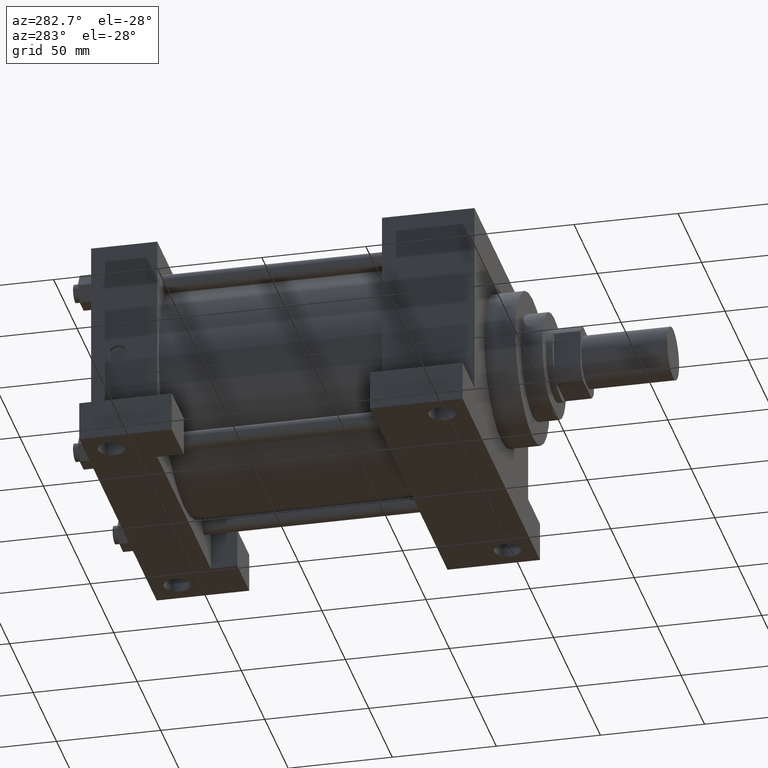
[diagram: clean part render]
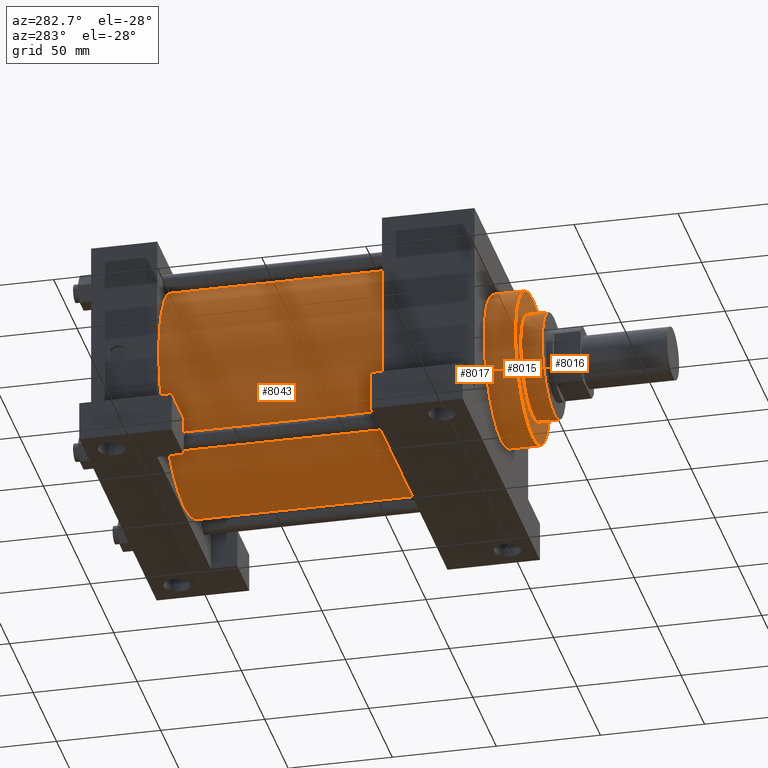
[diagram: same view with one multi-face feature highlighted, each face labeled with its STEP entity id]
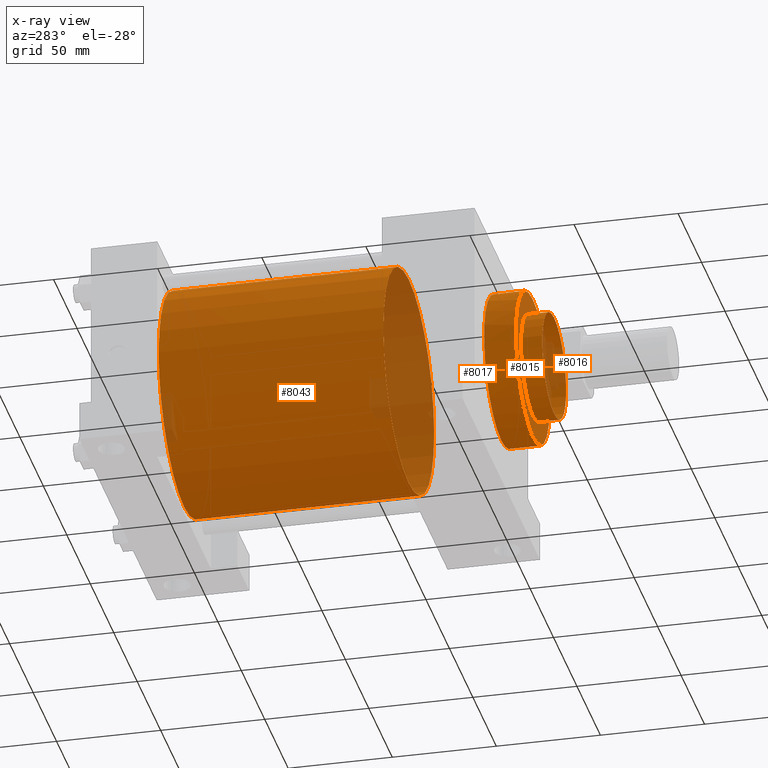
[diagram: x-ray of the same camera — body ghosted, the whole feature saturated]
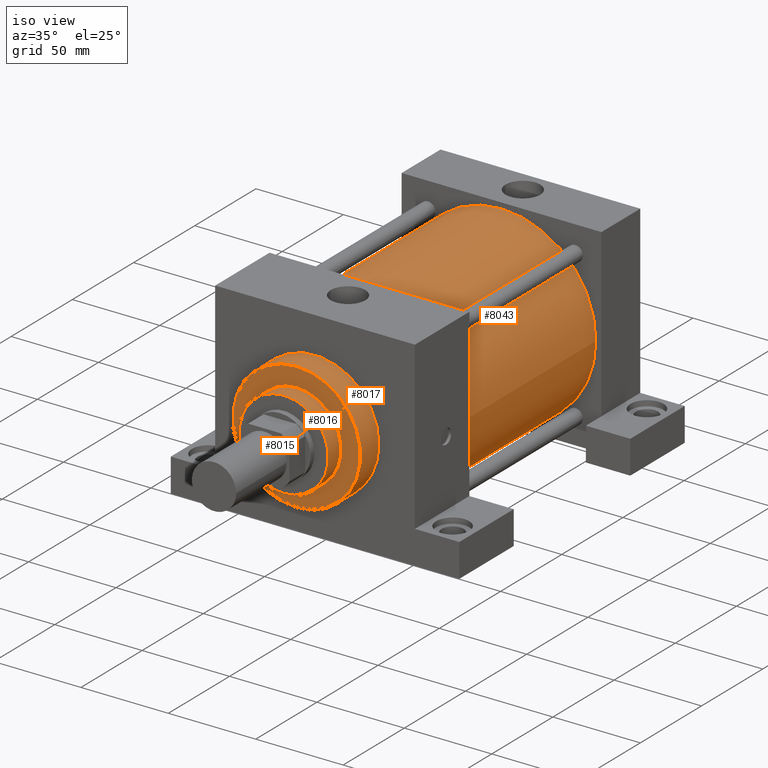
[diagram: same view with one multi-face feature highlighted, each face labeled with its STEP entity id]
A machine part, auxiliary view. The highlighted faces form ONE feature: a stepped (counterbored) hole: 3 coaxial cylindrical walls of radii 25.4 -> 36.5125 -> 53.975 mm joined by 1 annular planar shoulder face(s). The faces share edges in the B-rep.
The next image is the same camera in x-ray: the body ghosted and the whole hole feature saturated, so the bore chain is visible through the body.
A second angle (iso view) of the same feature is appended — it is thin or edge-on in the first view.
Their STEP definitions:
[1] entity #8043 (Cylinder):
#603=EDGE_CURVE('',#609,#609,#604,.T.);
#604=CIRCLE('',#605,5.397500000E+001);
#605=AXIS2_PLACEMENT_3D('',#606,#607,#608);
#606=CARTESIAN_POINT('',(0.000000000E+000,8.572500000E+001,0.000000000E+000));
#607=DIRECTION('',(0.0E+000,1.0E+000,0.0E+000));
#608=DIRECTION('',(1.0E+000,0.0E+000,0.0E+000));
#609=VERTEX_POINT('',#610);
#610=CARTESIAN_POINT('',(5.397500000E+001,8.572500000E+001,0.000000000E+000));
#1120=FACE_OUTER_BOUND('',#1122,.T.);
#1121=FACE_BOUND('',#1123,.T.);
#1122=EDGE_LOOP('',(#1124));
#1123=EDGE_LOOP('',(#1133));
#1124=ORIENTED_EDGE('',*,*,#1125,.F.);
#1125=EDGE_CURVE('',#1131,#1131,#1126,.T.);
#1126=CIRCLE('',#1127,5.397500000E+001);
#1127=AXIS2_PLACEMENT_3D('',#1128,#1129,#1130);
#1128=CARTESIAN_POINT('',(0.000000000E+000,1.936750000E+002,0.000000000E+000));
#1129=DIRECTION('',(0.0E+000,1.0E+000,0.0E+000));
#1130=DIRECTION('',(1.0E+000,0.0E+000,0.0E+000));
#1131=VERTEX_POINT('',#1132);
#1132=CARTESIAN_POINT('',(5.397500000E+001,1.936750000E+002,0.000000000E+000));
#1133=ORIENTED_EDGE('',*,*,#603,.T.);
#1134=CYLINDRICAL_SURFACE('',#1135,5.397500000E+001);
#1135=AXIS2_PLACEMENT_3D('',#1136,#1137,#1138);
#1136=CARTESIAN_POINT('',(0.000000000E+000,1.936750000E+002,0.000000000E+000));
#1137=DIRECTION('',(0.0E+000,-1.0E+000,0.0E+000));
#1138=DIRECTION('',(0.0E+000,0.0E+000,-1.0E+000));
#8043=ADVANCED_FACE('',(#1120,#1121),#1134,.T.);
[2] entity #8017 (Cylinder):
#405=EDGE_CURVE('',#411,#411,#406,.T.);
#406=CIRCLE('',#407,3.651250000E+001);
#407=AXIS2_PLACEMENT_3D('',#408,#409,#410);
#408=CARTESIAN_POINT('',(0.000000000E+000,2.619375000E+001,0.000000000E+000));
#409=DIRECTION('',(0.0E+000,-1.0E+000,0.0E+000));
#410=DIRECTION('',(0.0E+000,0.0E+000,-1.0E+000));
#411=VERTEX_POINT('',#412);
#412=CARTESIAN_POINT('',(0.000000000E+000,2.619375000E+001,-3.651250000E+001));
#446=FACE_OUTER_BOUND('',#448,.T.);
#447=FACE_BOUND('',#449,.T.);
#448=EDGE_LOOP('',(#450));
#449=EDGE_LOOP('',(#459));
#450=ORIENTED_EDGE('',*,*,#451,.F.);
#451=EDGE_CURVE('',#457,#457,#452,.T.);
#452=CIRCLE('',#453,3.651250000E+001);
#453=AXIS2_PLACEMENT_3D('',#454,#455,#456);
#454=CARTESIAN_POINT('',(0.000000000E+000,4.127500000E+001,0.000000000E+000));
#455=DIRECTION('',(0.0E+000,1.0E+000,0.0E+000));
#456=DIRECTION('',(1.0E+000,0.0E+000,0.0E+000));
#457=VERTEX_POINT('',#458);
#458=CARTESIAN_POINT('',(3.651250000E+001,4.127500000E+001,0.000000000E+000));
#459=ORIENTED_EDGE('',*,*,#405,.F.);
#460=CYLINDRICAL_SURFACE('',#461,3.651250000E+001);
#461=AXIS2_PLACEMENT_3D('',#462,#463,#464);
#462=CARTESIAN_POINT('',(0.000000000E+000,4.127500000E+001,0.000000000E+000));
#463=DIRECTION('',(0.0E+000,-1.0E+000,0.0E+000));
#464=DIRECTION('',(0.0E+000,0.0E+000,-1.0E+000));
#8017=ADVANCED_FACE('',(#446,#447),#460,.T.);
[3] entity #8016 (Cylinder):
#414=EDGE_CURVE('',#420,#420,#415,.T.);
#415=CIRCLE('',#416,2.540000000E+001);
#416=AXIS2_PLACEMENT_3D('',#417,#418,#419);
#417=CARTESIAN_POINT('',(0.000000000E+000,2.619375000E+001,0.000000000E+000));
#418=DIRECTION('',(0.0E+000,-1.0E+000,0.0E+000));
#419=DIRECTION('',(0.0E+000,0.0E+000,-1.0E+000));
#420=VERTEX_POINT('',#421);
#421=CARTESIAN_POINT('',(0.000000000E+000,2.619375000E+001,-2.540000000E+001));
#427=FACE_OUTER_BOUND('',#429,.T.);
#428=FACE_BOUND('',#430,.T.);
#429=EDGE_LOOP('',(#431));
#430=EDGE_LOOP('',(#432));
#431=ORIENTED_EDGE('',*,*,#414,.T.);
#432=ORIENTED_EDGE('',*,*,#433,.F.);
#433=EDGE_CURVE('',#439,#439,#434,.T.);
#434=CIRCLE('',#435,2.540000000E+001);
#435=AXIS2_PLACEMENT_3D('',#436,#437,#438);
#436=CARTESIAN_POINT('',(0.000000000E+000,1.587500000E+001,0.000000000E+000));
#437=DIRECTION('',(0.0E+000,-1.0E+000,0.0E+000));
#438=DIRECTION('',(0.0E+000,0.0E+000,-1.0E+000));
#439=VERTEX_POINT('',#440);
#440=CARTESIAN_POINT('',(0.000000000E+000,1.587500000E+001,-2.540000000E+001));
#441=CYLINDRICAL_SURFACE('',#442,2.540000000E+001);
#442=AXIS2_PLACEMENT_3D('',#443,#444,#445);
#443=CARTESIAN_POINT('',(0.000000000E+000,-3.454400000E+001,0.000000000E+000));
#444=DIRECTION('',(0.0E+000,-1.0E+000,0.0E+000));
#445=DIRECTION('',(0.0E+000,0.0E+000,-1.0E+000));
#8016=ADVANCED_FACE('',(#427,#428),#441,.T.);
[4] entity #8015 (Plane):
#400=FACE_OUTER_BOUND('',#402,.T.);
#401=FACE_BOUND('',#403,.T.);
#402=EDGE_LOOP('',(#404));
#403=EDGE_LOOP('',(#413));
#404=ORIENTED_EDGE('',*,*,#405,.T.);
#405=EDGE_CURVE('',#411,#411,#406,.T.);
#406=CIRCLE('',#407,3.651250000E+001);
#407=AXIS2_PLACEMENT_3D('',#408,#409,#410);
#408=CARTESIAN_POINT('',(0.000000000E+000,2.619375000E+001,0.000000000E+000));
#409=DIRECTION('',(0.0E+000,-1.0E+000,0.0E+000));
#410=DIRECTION('',(0.0E+000,0.0E+000,-1.0E+000));
#411=VERTEX_POINT('',#412);
#412=CARTESIAN_POINT('',(0.000000000E+000,2.619375000E+001,-3.651250000E+001));
#413=ORIENTED_EDGE('',*,*,#414,.F.);
#414=EDGE_CURVE('',#420,#420,#415,.T.);
#415=CIRCLE('',#416,2.540000000E+001);
#416=AXIS2_PLACEMENT_3D('',#417,#418,#419);
#417=CARTESIAN_POINT('',(0.000000000E+000,2.619375000E+001,0.000000000E+000));
#418=DIRECTION('',(0.0E+000,-1.0E+000,0.0E+000));
#419=DIRECTION('',(0.0E+000,0.0E+000,-1.0E+000));
#420=VERTEX_POINT('',#421);
#421=CARTESIAN_POINT('',(0.000000000E+000,2.619375000E+001,-2.540000000E+001));
#422=PLANE('',#423);
#423=AXIS2_PLACEMENT_3D('',#424,#425,#426);
#424=CARTESIAN_POINT('',(0.000000000E+000,2.619375000E+001,-2.540000000E+001));
#425=DIRECTION('',(0.0E+000,-1.0E+000,0.0E+000));
#426=DIRECTION('',(0.0E+000,0.0E+000,-1.0E+000));
#8015=ADVANCED_FACE('',(#400,#401),#422,.T.);